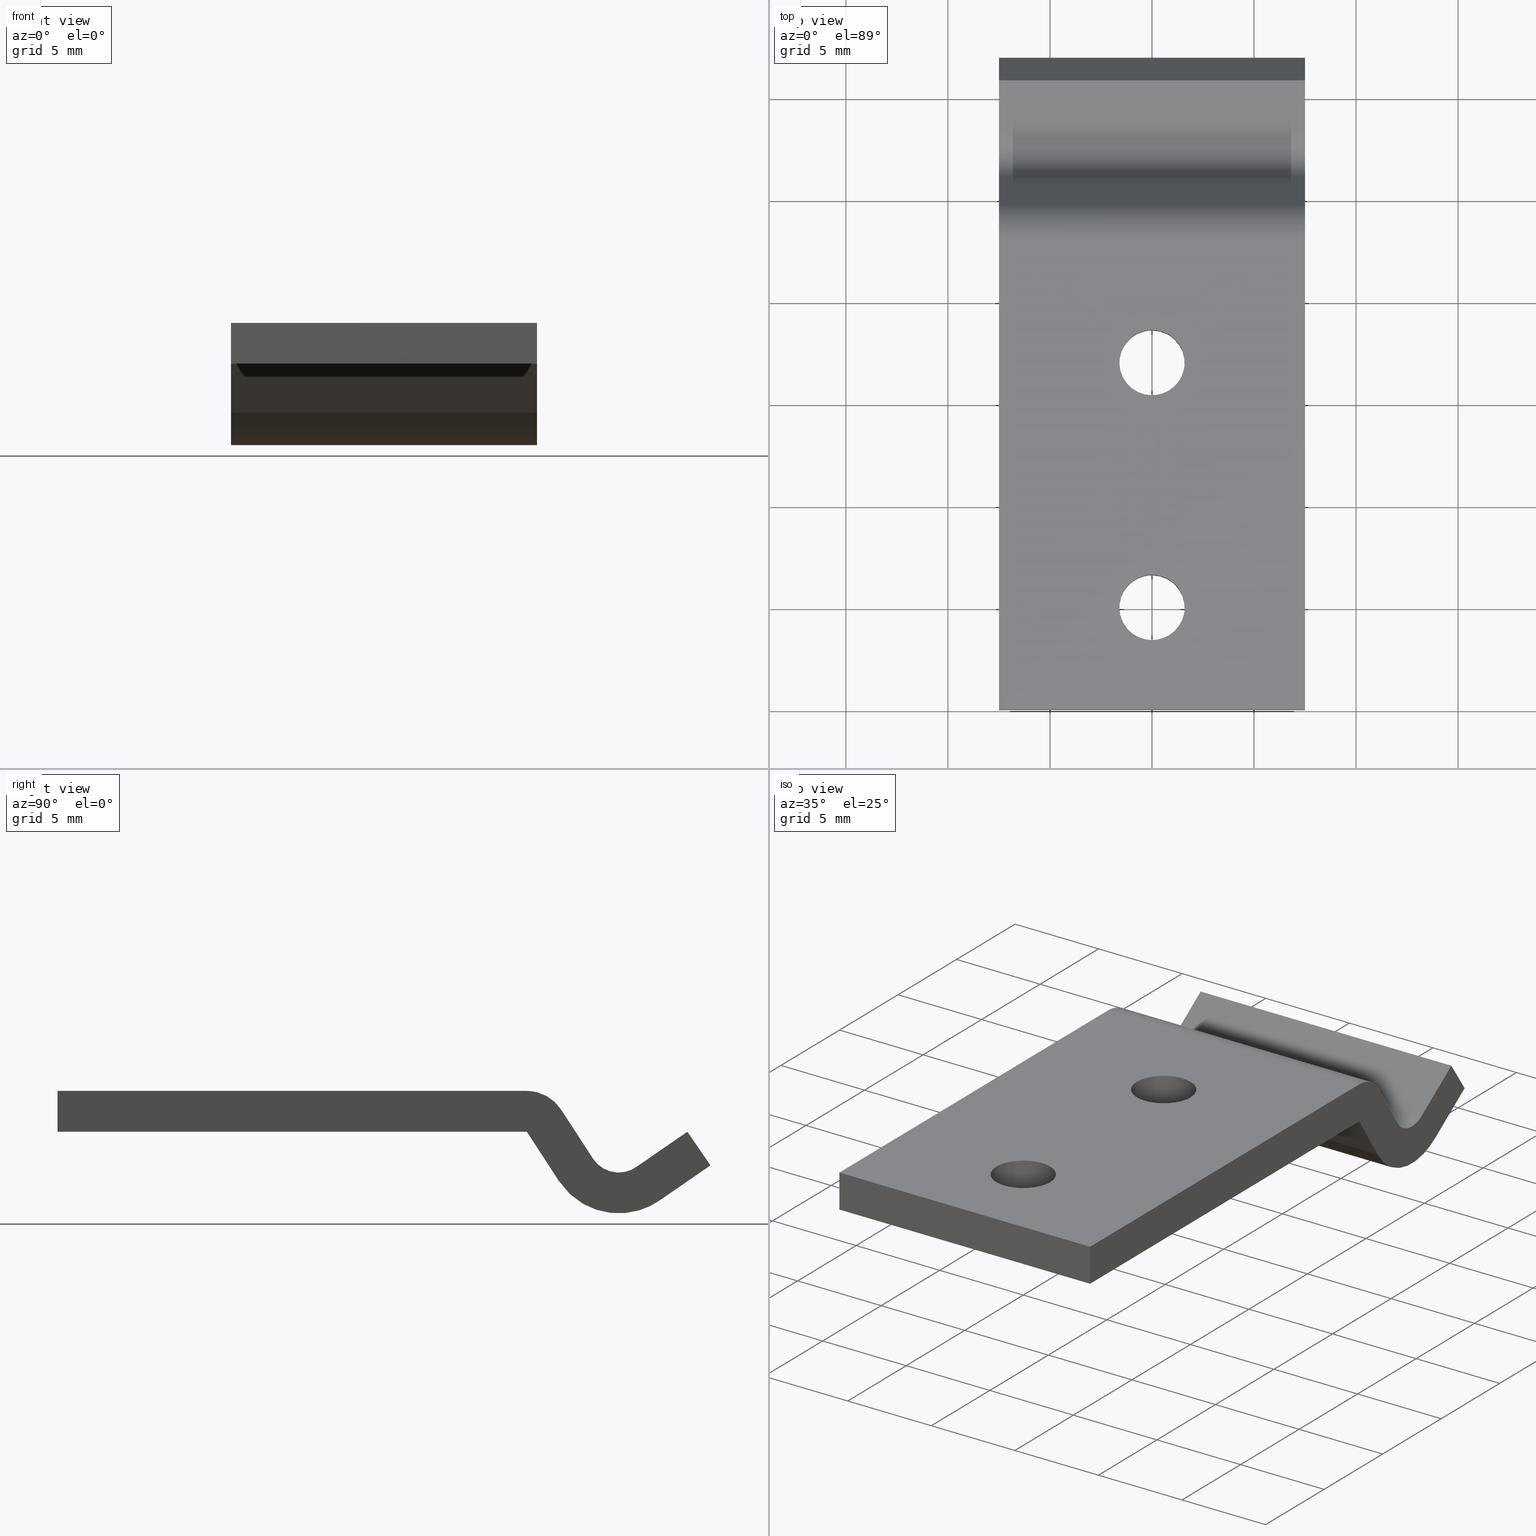
[diagram: canonical four-view strip — front | top / right | iso, engineering-drawing reading convention]
A machine part, canonical four-view strip (front | top / right | iso — engineering-drawing reading convention). The complete STEP part file that produces these views, byte-faithful:
ISO-10303-21;
HEADER;
/****************************************************************
 * Generated by software with PDE/Lib inside                    *
 * PDElib Version 4.4.1-0003, patched  Thursday August 19 11:58 *
 * International Technegroup Inc. (www.iti-oh.com)              *
 ****************************************************************/
FILE_DESCRIPTION((''),'2;1');
FILE_NAME('','2005-07-15T14:42:04',(''),(''),'','CADfix','');
FILE_SCHEMA(('AUTOMOTIVE_DESIGN'));
ENDSEC;
DATA;
#5=APPLICATION_CONTEXT('automotive design');
#6=APPLICATION_PROTOCOL_DEFINITION('Draft International Standard','automotive_design',1998,#5);
#7=PRODUCT_CONTEXT('None',#5,'mechanical');
#8=PRODUCT('keepper','','None',(#7));
#9=PRODUCT_RELATED_PRODUCT_CATEGORY('part','description',(#8));
#10=PRODUCT_DEFINITION_FORMATION('None','None',#8);
#11=PRODUCT_DEFINITION_CONTEXT('part definition',#5,'design');
#12=PRODUCT_DEFINITION('None','None',#10,#11);
#18=(NAMED_UNIT(*)PLANE_ANGLE_UNIT()SI_UNIT($,.RADIAN.));
#19=DIMENSIONAL_EXPONENTS(0.0,0.0,0.0,0.0,0.0,0.0,0.0);
#20=PLANE_ANGLE_MEASURE_WITH_UNIT(PLANE_ANGLE_MEASURE(0.017453292500000),#18);
#24=(CONVERSION_BASED_UNIT('DEGREE',#20)NAMED_UNIT(#19)PLANE_ANGLE_UNIT());
#28=(NAMED_UNIT(*)SI_UNIT($,.STERADIAN.)SOLID_ANGLE_UNIT());
#32=(LENGTH_UNIT()NAMED_UNIT(*)SI_UNIT(.MILLI.,.METRE.));
#34=UNCERTAINTY_MEASURE_WITH_UNIT(LENGTH_MEASURE(0.001000000000000),#32,'DISTANCE_ACCURACY_VALUE','');
#36=(GEOMETRIC_REPRESENTATION_CONTEXT(3)GLOBAL_UNCERTAINTY_ASSIGNED_CONTEXT((#34))GLOBAL_UNIT_ASSIGNED_CONTEXT((#24,#28,#32))REPRESENTATION_CONTEXT('None','None'));
#37=AXIS2_PLACEMENT_3D('',#38,#39,#40);
#38=CARTESIAN_POINT('',(0.0,0.0,0.0));
#39=DIRECTION('',(0.0,0.0,1.0));
#40=DIRECTION('',(1.0,0.0,0.0));
#41=ADVANCED_BREP_SHAPE_REPRESENTATION('',(#37,#878),#36);
#42=PRODUCT_DEFINITION_SHAPE('','',#12);
#43=SHAPE_DEFINITION_REPRESENTATION(#42,#41);
#44=CARTESIAN_POINT('',(-1.263055872870600,17.982186266452086,-2.050000000000000));
#45=CARTESIAN_POINT('',(-2.137684591812384,16.857445493980098,-2.050000000000000));
#46=CARTESIAN_POINT('',(-1.121454822879762,15.858799281353310,-2.050000000000000));
#47=CARTESIAN_POINT('',(0.019745895766928,14.737344458473556,-2.050000000000001));
#48=CARTESIAN_POINT('',(1.141200718646689,15.878545177120239,-2.050000000000000));
#49=CARTESIAN_POINT('',(2.262655541526450,17.019745895766935,-2.050000000000001));
#50=CARTESIAN_POINT('',(1.121454822879760,18.141200718646690,-2.050000000000000));
#51=CARTESIAN_POINT('',(-1.263055872870600,17.982186266452086,0.051250000000000));
#52=CARTESIAN_POINT('',(-2.137684591812384,16.857445493980098,0.051250000000000));
#53=CARTESIAN_POINT('',(-1.121454822879762,15.858799281353310,0.051250000000000));
#54=CARTESIAN_POINT('',(0.019745895766928,14.737344458473556,0.051250000000000));
#55=CARTESIAN_POINT('',(1.141200718646689,15.878545177120239,0.051250000000000));
#56=CARTESIAN_POINT('',(2.262655541526450,17.019745895766935,0.051250000000000));
#57=CARTESIAN_POINT('',(1.121454822879760,18.141200718646690,0.051250000000000));
#65=(BOUNDED_SURFACE()B_SPLINE_SURFACE(2,1,((#44,#51),(#45,#52),(#46,#53),(#47,#54),(#48,#55),(#49,#56),(#50,#57)),.UNSPECIFIED.,.F.,.F.,.U.)B_SPLINE_SURFACE_WITH_KNOTS((3,2,2,3),(2,2),(1.696460032938489,3.141592653589793,4.712388980384690,6.283185307179586),(0.0,2.101250000000000),.UNSPECIFIED.)GEOMETRIC_REPRESENTATION_ITEM()RATIONAL_B_SPLINE_SURFACE(((0.956886118190660,0.956886118190660),(0.730538238691624,0.730538238691624),(1.0,1.0),(0.707106781186548,0.707106781186548),(1.0,1.0),(0.707106781186548,0.707106781186548),(1.0,1.0)))REPRESENTATION_ITEM('')SURFACE());
#66=CARTESIAN_POINT('',(-1.263056931649046,17.982184904898428,7.661973E-014));
#67=VERTEX_POINT('',#66);
#68=CARTESIAN_POINT('',(-1.600000000000001,17.0,0.0));
#69=VERTEX_POINT('',#68);
#70=CARTESIAN_POINT('',(-1.263056931649047,17.982184904898421,7.661973E-014));
#71=CARTESIAN_POINT('',(-1.600000000000001,17.548887390420436,0.0));
#72=CARTESIAN_POINT('',(-1.600000000000001,17.0,0.0));
#80=(BOUNDED_CURVE()B_SPLINE_CURVE(2,(#70,#71,#72),.UNSPECIFIED.,.F.,.U.)B_SPLINE_CURVE_WITH_KNOTS((3,3),(0.893802338418216,1.0),.UNSPECIFIED.)CURVE()GEOMETRIC_REPRESENTATION_ITEM()RATIONAL_B_SPLINE_CURVE((0.856866860460670,0.875581700275399,1.0))REPRESENTATION_ITEM(''));
#81=EDGE_CURVE('',#67,#69,#80,.T.);
#82=ORIENTED_EDGE('',*,*,#81,.T.);
#83=CARTESIAN_POINT('',(1.599999999999999,17.0,0.0));
#84=VERTEX_POINT('',#83);
#85=CARTESIAN_POINT('',(-1.600000000000001,17.0,0.0));
#86=CARTESIAN_POINT('',(-1.600000000000001,15.399999999999997,0.0));
#87=CARTESIAN_POINT('',(-1.223941E-015,15.400000000000000,0.0));
#88=CARTESIAN_POINT('',(1.599999999999998,15.399999999999997,0.0));
#89=CARTESIAN_POINT('',(1.599999999999999,17.0,0.0));
#97=(BOUNDED_CURVE()B_SPLINE_CURVE(2,(#85,#86,#87,#88,#89),.UNSPECIFIED.,.F.,.U.)B_SPLINE_CURVE_WITH_KNOTS((3,2,3),(0.0,0.250000000000000,0.500000000000000),.UNSPECIFIED.)CURVE()GEOMETRIC_REPRESENTATION_ITEM()RATIONAL_B_SPLINE_CURVE((1.0,0.707106781186548,1.0,0.707106781186548,1.0))REPRESENTATION_ITEM(''));
#98=EDGE_CURVE('',#69,#84,#97,.T.);
#99=ORIENTED_EDGE('',*,*,#98,.T.);
#100=CARTESIAN_POINT('',(1.121454714115848,18.141200825528671,1.040834E-016));
#101=VERTEX_POINT('',#100);
#102=CARTESIAN_POINT('',(1.599999999999999,17.0,0.0));
#103=CARTESIAN_POINT('',(1.599999999999999,17.670935862118078,0.0));
#104=CARTESIAN_POINT('',(1.121454714115848,18.141200825528667,1.040834E-016));
#112=(BOUNDED_CURVE()B_SPLINE_CURVE(2,(#102,#103,#104),.UNSPECIFIED.,.F.,.U.)B_SPLINE_CURVE_WITH_KNOTS((3,3),(0.500000000000000,0.626316786352934),.UNSPECIFIED.)CURVE()GEOMETRIC_REPRESENTATION_ITEM()RATIONAL_B_SPLINE_CURVE((1.0,0.852010679419672,0.853569641961433))REPRESENTATION_ITEM(''));
#113=EDGE_CURVE('',#84,#101,#112,.T.);
#114=ORIENTED_EDGE('',*,*,#113,.T.);
#115=CARTESIAN_POINT('',(1.121454701941932,18.141200837491940,-1.999999999999998));
#116=VERTEX_POINT('',#115);
#117=CARTESIAN_POINT('',(1.121454701941932,18.141200837491940,-1.999999999999998));
#118=CARTESIAN_POINT('',(1.121454714115848,18.141200825528671,1.040834E-016));
#119=QUASI_UNIFORM_CURVE('',1,(#117,#118),.UNSPECIFIED.,.F.,.U.);
#120=EDGE_CURVE('',#116,#101,#119,.T.);
#121=ORIENTED_EDGE('',*,*,#120,.F.);
#122=CARTESIAN_POINT('',(-1.223941E-015,15.400000000000000,-2.0));
#123=VERTEX_POINT('',#122);
#124=CARTESIAN_POINT('',(1.121454701941932,18.141200837491940,-1.999999999999997));
#125=CARTESIAN_POINT('',(1.599999999999999,17.670935882187614,-2.000000000000000));
#126=CARTESIAN_POINT('',(1.599999999999999,17.0,-2.0));
#127=CARTESIAN_POINT('',(1.599999999999998,15.399999999999997,-2.000000000000000));
#128=CARTESIAN_POINT('',(-1.223941E-015,15.400000000000000,-2.0));
#136=(BOUNDED_CURVE()B_SPLINE_CURVE(2,(#124,#125,#126,#127,#128),.UNSPECIFIED.,.F.,.U.)B_SPLINE_CURVE_WITH_KNOTS((3,2,3),(0.123683210427761,0.250000000000000,0.500000000000000),.UNSPECIFIED.)CURVE()GEOMETRIC_REPRESENTATION_ITEM()RATIONAL_B_SPLINE_CURVE((0.853569642040897,0.852010675648021,1.0,0.707106781186548,1.0))REPRESENTATION_ITEM(''));
#137=EDGE_CURVE('',#116,#123,#136,.T.);
#138=ORIENTED_EDGE('',*,*,#137,.T.);
#139=CARTESIAN_POINT('',(-1.263056544785496,17.982185402392709,-2.0));
#140=VERTEX_POINT('',#139);
#141=CARTESIAN_POINT('',(-1.223941E-015,15.400000000000000,-2.0));
#142=CARTESIAN_POINT('',(-1.600000000000001,15.399999999999997,-2.000000000000000));
#143=CARTESIAN_POINT('',(-1.600000000000001,17.0,-2.0));
#144=CARTESIAN_POINT('',(-1.600000000000002,17.548887742608766,-2.000000000000000));
#145=CARTESIAN_POINT('',(-1.263056544785496,17.982185402392705,-2.000000000000000));
#153=(BOUNDED_CURVE()B_SPLINE_CURVE(2,(#141,#142,#143,#144,#145),.UNSPECIFIED.,.F.,.U.)B_SPLINE_CURVE_WITH_KNOTS((3,2,3),(0.500000000000000,0.750000000000000,0.856197721244537),.UNSPECIFIED.)CURVE()GEOMETRIC_REPRESENTATION_ITEM()RATIONAL_B_SPLINE_CURVE((1.0,0.707106781186548,1.0,0.875581630376135,0.856866839432390))REPRESENTATION_ITEM(''));
#154=EDGE_CURVE('',#123,#140,#153,.T.);
#155=ORIENTED_EDGE('',*,*,#154,.T.);
#156=CARTESIAN_POINT('',(-1.263056544785496,17.982185402392709,-2.0));
#157=CARTESIAN_POINT('',(-1.263056931649046,17.982184904898428,7.661973E-014));
#158=QUASI_UNIFORM_CURVE('',1,(#156,#157),.UNSPECIFIED.,.F.,.U.);
#159=EDGE_CURVE('',#140,#67,#158,.T.);
#160=ORIENTED_EDGE('',*,*,#159,.T.);
#161=EDGE_LOOP('',(#82,#99,#114,#121,#138,#155,#160));
#162=FACE_OUTER_BOUND('',#161,.T.);
#163=ADVANCED_FACE('',(#162),#65,.F.);
#164=CARTESIAN_POINT('',(1.130142307215026,18.132663551567063,-2.049999999999999));
#165=CARTESIAN_POINT('',(1.125805424281291,18.136925394556503,-2.049999999999999));
#166=CARTESIAN_POINT('',(-0.019745895766931,19.262655541526449,-2.050000000000001));
#167=CARTESIAN_POINT('',(-1.141200718646692,18.121454822879759,-2.050000000000000));
#168=CARTESIAN_POINT('',(-1.206161919057814,18.055349825085063,-2.050000000000000));
#169=CARTESIAN_POINT('',(-1.266981190131970,17.977138450992641,-2.050000000000000));
#170=CARTESIAN_POINT('',(-1.270917439241550,17.972076577573358,-2.049999999999999));
#171=CARTESIAN_POINT('',(1.130142307215026,18.132663551567063,0.051250000000000));
#172=CARTESIAN_POINT('',(1.125805424281291,18.136925394556503,0.051250000000000));
#173=CARTESIAN_POINT('',(-0.019745895766931,19.262655541526449,0.051250000000000));
#174=CARTESIAN_POINT('',(-1.141200718646692,18.121454822879759,0.051250000000000));
#175=CARTESIAN_POINT('',(-1.206161919057814,18.055349825085063,0.051250000000000));
#176=CARTESIAN_POINT('',(-1.266981190131970,17.977138450992641,0.051250000000000));
#177=CARTESIAN_POINT('',(-1.270917439241550,17.972076577573358,0.051250000000000));
#185=(BOUNDED_SURFACE()B_SPLINE_SURFACE(2,1,((#164,#171),(#165,#172),(#166,#173),(#167,#174),(#168,#175),(#169,#176),(#170,#177)),.UNSPECIFIED.,.F.,.F.,.U.)B_SPLINE_SURFACE_WITH_KNOTS((3,1,2,1,3),(2,2),(0.0,0.014315050516549,2.665281849704356,2.877359193639381,2.891676356386252),(0.0,2.101250000000000),.UNSPECIFIED.)GEOMETRIC_REPRESENTATION_ITEM()RATIONAL_B_SPLINE_SURFACE(((1.003163209154150,1.003163209154150),(1.001581604577075,1.001581604577075),(0.707106781186548,0.707106781186548),(1.0,1.0),(0.976568542494924,0.976568542494924),(0.955557374314541,0.955557374314541),(0.954228630438423,0.954228630438423)))REPRESENTATION_ITEM('')SURFACE());
#186=CARTESIAN_POINT('',(1.121454714115848,18.141200825528667,1.040834E-016));
#187=CARTESIAN_POINT('',(0.654577104271281,18.600000000000005,0.0));
#188=CARTESIAN_POINT('',(-1.223941E-015,18.600000000000001,0.0));
#189=CARTESIAN_POINT('',(-0.782628341915235,18.599999999999998,0.0));
#190=CARTESIAN_POINT('',(-1.263056931649046,17.982184904898428,7.661973E-014));
#198=(BOUNDED_CURVE()B_SPLINE_CURVE(2,(#186,#187,#188,#189,#190),.UNSPECIFIED.,.F.,.U.)B_SPLINE_CURVE_WITH_KNOTS((3,2,3),(0.626316786352934,0.750000000000000,0.893802338418216),.UNSPECIFIED.)CURVE()GEOMETRIC_REPRESENTATION_ITEM()RATIONAL_B_SPLINE_CURVE((0.853569641961433,0.855096101766876,1.0,0.831525080911149,0.856866860460671))REPRESENTATION_ITEM(''));
#199=EDGE_CURVE('',#101,#67,#198,.T.);
#200=ORIENTED_EDGE('',*,*,#199,.T.);
#201=ORIENTED_EDGE('',*,*,#159,.F.);
#202=CARTESIAN_POINT('',(-1.223941E-015,18.600000000000001,-2.0));
#203=VERTEX_POINT('',#202);
#204=CARTESIAN_POINT('',(-1.263056544785496,17.982185402392712,-2.000000000000000));
#205=CARTESIAN_POINT('',(-0.782627951418396,18.599999999999994,-2.0));
#206=CARTESIAN_POINT('',(-1.223941E-015,18.600000000000001,-2.0));
#214=(BOUNDED_CURVE()B_SPLINE_CURVE(2,(#204,#205,#206),.UNSPECIFIED.,.F.,.U.)B_SPLINE_CURVE_WITH_KNOTS((3,3),(0.856197721244537,1.0),.UNSPECIFIED.)CURVE()GEOMETRIC_REPRESENTATION_ITEM()RATIONAL_B_SPLINE_CURVE((0.856866839432390,0.831525150810412,1.0))REPRESENTATION_ITEM(''));
#215=EDGE_CURVE('',#140,#203,#214,.T.);
#216=ORIENTED_EDGE('',*,*,#215,.T.);
#217=CARTESIAN_POINT('',(-1.223941E-015,18.600000000000001,-2.0));
#218=CARTESIAN_POINT('',(0.654577084346330,18.599999999999998,-2.000000000000000));
#219=CARTESIAN_POINT('',(1.121454701941932,18.141200837491940,-1.999999999999997));
#227=(BOUNDED_CURVE()B_SPLINE_CURVE(2,(#217,#218,#219),.UNSPECIFIED.,.F.,.U.)B_SPLINE_CURVE_WITH_KNOTS((3,3),(0.0,0.123683210427761),.UNSPECIFIED.)CURVE()GEOMETRIC_REPRESENTATION_ITEM()RATIONAL_B_SPLINE_CURVE((1.0,0.855096105538526,0.853569642040897))REPRESENTATION_ITEM(''));
#228=EDGE_CURVE('',#203,#116,#227,.T.);
#229=ORIENTED_EDGE('',*,*,#228,.T.);
#230=ORIENTED_EDGE('',*,*,#120,.T.);
#231=EDGE_LOOP('',(#200,#201,#216,#229,#230));
#232=FACE_OUTER_BOUND('',#231,.T.);
#233=ADVANCED_FACE('',(#232),#185,.F.);
#234=CARTESIAN_POINT('',(-1.263055872870598,5.982186266452086,-2.050000000000000));
#235=CARTESIAN_POINT('',(-2.137684591812382,4.857445493980086,-2.050000000000000));
#236=CARTESIAN_POINT('',(-1.121454822879760,3.858799281353310,-2.050000000000000));
#237=CARTESIAN_POINT('',(0.019745895766931,2.737344458473548,-2.050000000000001));
#238=CARTESIAN_POINT('',(1.141200718646692,3.878545177120239,-2.050000000000000));
#239=CARTESIAN_POINT('',(2.262655541526453,5.019745895766930,-2.050000000000001));
#240=CARTESIAN_POINT('',(1.121454822879762,6.141200718646690,-2.050000000000000));
#241=CARTESIAN_POINT('',(-1.263055872870598,5.982186266452086,0.051250000000000));
#242=CARTESIAN_POINT('',(-2.137684591812382,4.857445493980086,0.051250000000000));
#243=CARTESIAN_POINT('',(-1.121454822879760,3.858799281353310,0.051250000000000));
#244=CARTESIAN_POINT('',(0.019745895766931,2.737344458473548,0.051250000000000));
#245=CARTESIAN_POINT('',(1.141200718646692,3.878545177120239,0.051250000000000));
#246=CARTESIAN_POINT('',(2.262655541526453,5.019745895766930,0.051250000000000));
#247=CARTESIAN_POINT('',(1.121454822879762,6.141200718646690,0.051250000000000));
#255=(BOUNDED_SURFACE()B_SPLINE_SURFACE(2,1,((#234,#241),(#235,#242),(#236,#243),(#237,#244),(#238,#245),(#239,#246),(#240,#247)),.UNSPECIFIED.,.F.,.F.,.U.)B_SPLINE_SURFACE_WITH_KNOTS((3,2,2,3),(2,2),(1.696460032938489,3.141592653589793,4.712388980384690,6.283185307179586),(0.0,2.101250000000000),.UNSPECIFIED.)GEOMETRIC_REPRESENTATION_ITEM()RATIONAL_B_SPLINE_SURFACE(((0.956886118190660,0.956886118190660),(0.730538238691624,0.730538238691624),(1.0,1.0),(0.707106781186548,0.707106781186548),(1.0,1.0),(0.707106781186548,0.707106781186548),(1.0,1.0)))REPRESENTATION_ITEM('')SURFACE());
#256=CARTESIAN_POINT('',(-1.263056931649043,5.982184904898423,7.661973E-014));
#257=VERTEX_POINT('',#256);
#258=CARTESIAN_POINT('',(-1.599999999999999,5.0,0.0));
#259=VERTEX_POINT('',#258);
#260=CARTESIAN_POINT('',(-1.263056931649043,5.982184904898424,7.661973E-014));
#261=CARTESIAN_POINT('',(-1.599999999999999,5.548887390420437,0.0));
#262=CARTESIAN_POINT('',(-1.599999999999999,5.0,0.0));
#270=(BOUNDED_CURVE()B_SPLINE_CURVE(2,(#260,#261,#262),.UNSPECIFIED.,.F.,.U.)B_SPLINE_CURVE_WITH_KNOTS((3,3),(0.893802338418216,1.0),.UNSPECIFIED.)CURVE()GEOMETRIC_REPRESENTATION_ITEM()RATIONAL_B_SPLINE_CURVE((0.856866860460670,0.875581700275399,1.0))REPRESENTATION_ITEM(''));
#271=EDGE_CURVE('',#257,#259,#270,.T.);
#272=ORIENTED_EDGE('',*,*,#271,.T.);
#273=CARTESIAN_POINT('',(1.600000000000001,5.0,0.0));
#274=VERTEX_POINT('',#273);
#275=CARTESIAN_POINT('',(-1.599999999999999,5.0,0.0));
#276=CARTESIAN_POINT('',(-1.599999999999998,3.400000000000001,0.0));
#277=CARTESIAN_POINT('',(1.287180E-015,3.400000000000000,0.0));
#278=CARTESIAN_POINT('',(1.600000000000001,3.400000000000001,0.0));
#279=CARTESIAN_POINT('',(1.600000000000001,5.0,0.0));
#287=(BOUNDED_CURVE()B_SPLINE_CURVE(2,(#275,#276,#277,#278,#279),.UNSPECIFIED.,.F.,.U.)B_SPLINE_CURVE_WITH_KNOTS((3,2,3),(0.0,0.250000000000000,0.500000000000000),.UNSPECIFIED.)CURVE()GEOMETRIC_REPRESENTATION_ITEM()RATIONAL_B_SPLINE_CURVE((1.0,0.707106781186548,1.0,0.707106781186548,1.0))REPRESENTATION_ITEM(''));
#288=EDGE_CURVE('',#259,#274,#287,.T.);
#289=ORIENTED_EDGE('',*,*,#288,.T.);
#290=CARTESIAN_POINT('',(1.121454714115851,6.141200825528668,1.040834E-016));
#291=VERTEX_POINT('',#290);
#292=CARTESIAN_POINT('',(1.600000000000001,5.0,0.0));
#293=CARTESIAN_POINT('',(1.600000000000001,5.670935862118082,0.0));
#294=CARTESIAN_POINT('',(1.121454714115851,6.141200825528668,1.040834E-016));
#302=(BOUNDED_CURVE()B_SPLINE_CURVE(2,(#292,#293,#294),.UNSPECIFIED.,.F.,.U.)B_SPLINE_CURVE_WITH_KNOTS((3,3),(0.500000000000000,0.626316786352934),.UNSPECIFIED.)CURVE()GEOMETRIC_REPRESENTATION_ITEM()RATIONAL_B_SPLINE_CURVE((1.0,0.852010679419672,0.853569641961433))REPRESENTATION_ITEM(''));
#303=EDGE_CURVE('',#274,#291,#302,.T.);
#304=ORIENTED_EDGE('',*,*,#303,.T.);
#305=CARTESIAN_POINT('',(1.121454701941934,6.141200837491939,-1.999999999999998));
#306=VERTEX_POINT('',#305);
#307=CARTESIAN_POINT('',(1.121454701941934,6.141200837491939,-1.999999999999998));
#308=CARTESIAN_POINT('',(1.121454714115851,6.141200825528668,1.040834E-016));
#309=QUASI_UNIFORM_CURVE('',1,(#307,#308),.UNSPECIFIED.,.F.,.U.);
#310=EDGE_CURVE('',#306,#291,#309,.T.);
#311=ORIENTED_EDGE('',*,*,#310,.F.);
#312=CARTESIAN_POINT('',(1.287180E-015,3.400000000000000,-2.0));
#313=VERTEX_POINT('',#312);
#314=CARTESIAN_POINT('',(1.121454701941934,6.141200837491939,-1.999999999999998));
#315=CARTESIAN_POINT('',(1.600000000000001,5.670935882187609,-2.0));
#316=CARTESIAN_POINT('',(1.600000000000001,5.0,-2.0));
#317=CARTESIAN_POINT('',(1.600000000000001,3.400000000000001,-2.000000000000000));
#318=CARTESIAN_POINT('',(1.287180E-015,3.400000000000000,-2.0));
#326=(BOUNDED_CURVE()B_SPLINE_CURVE(2,(#314,#315,#316,#317,#318),.UNSPECIFIED.,.F.,.U.)B_SPLINE_CURVE_WITH_KNOTS((3,2,3),(0.123683210427761,0.250000000000000,0.500000000000000),.UNSPECIFIED.)CURVE()GEOMETRIC_REPRESENTATION_ITEM()RATIONAL_B_SPLINE_CURVE((0.853569642040896,0.852010675648021,1.0,0.707106781186548,1.0))REPRESENTATION_ITEM(''));
#327=EDGE_CURVE('',#306,#313,#326,.T.);
#328=ORIENTED_EDGE('',*,*,#327,.T.);
#329=CARTESIAN_POINT('',(-1.263056544785492,5.982185402392711,-2.0));
#330=VERTEX_POINT('',#329);
#331=CARTESIAN_POINT('',(1.287180E-015,3.400000000000000,-2.0));
#332=CARTESIAN_POINT('',(-1.599999999999998,3.400000000000001,-2.000000000000000));
#333=CARTESIAN_POINT('',(-1.599999999999999,5.0,-2.0));
#334=CARTESIAN_POINT('',(-1.599999999999999,5.548887742608760,-2.0));
#335=CARTESIAN_POINT('',(-1.263056544785493,5.982185402392711,-2.000000000000000));
#343=(BOUNDED_CURVE()B_SPLINE_CURVE(2,(#331,#332,#333,#334,#335),.UNSPECIFIED.,.F.,.U.)B_SPLINE_CURVE_WITH_KNOTS((3,2,3),(0.500000000000000,0.750000000000000,0.856197721244537),.UNSPECIFIED.)CURVE()GEOMETRIC_REPRESENTATION_ITEM()RATIONAL_B_SPLINE_CURVE((1.0,0.707106781186548,1.0,0.875581630376135,0.856866839432390))REPRESENTATION_ITEM(''));
#344=EDGE_CURVE('',#313,#330,#343,.T.);
#345=ORIENTED_EDGE('',*,*,#344,.T.);
#346=CARTESIAN_POINT('',(-1.263056544785492,5.982185402392711,-2.0));
#347=CARTESIAN_POINT('',(-1.263056931649043,5.982184904898423,7.661973E-014));
#348=QUASI_UNIFORM_CURVE('',1,(#346,#347),.UNSPECIFIED.,.F.,.U.);
#349=EDGE_CURVE('',#330,#257,#348,.T.);
#350=ORIENTED_EDGE('',*,*,#349,.T.);
#351=EDGE_LOOP('',(#272,#289,#304,#311,#328,#345,#350));
#352=FACE_OUTER_BOUND('',#351,.T.);
#353=ADVANCED_FACE('',(#352),#255,.F.);
#354=CARTESIAN_POINT('',(1.130142307215031,6.132663551567060,-2.050000000000000));
#355=CARTESIAN_POINT('',(1.125805424281296,6.136925394556500,-2.050000000000000));
#356=CARTESIAN_POINT('',(-0.019745895766928,7.262655541526451,-2.050000000000001));
#357=CARTESIAN_POINT('',(-1.141200718646689,6.121454822879761,-2.050000000000000));
#358=CARTESIAN_POINT('',(-1.206161919057812,6.055349825085058,-2.050000000000000));
#359=CARTESIAN_POINT('',(-1.266981190131968,5.977138450992638,-2.050000000000000));
#360=CARTESIAN_POINT('',(-1.270917439241548,5.972076577573356,-2.050000000000000));
#361=CARTESIAN_POINT('',(1.130142307215031,6.132663551567060,0.051250000000000));
#362=CARTESIAN_POINT('',(1.125805424281296,6.136925394556500,0.051250000000000));
#363=CARTESIAN_POINT('',(-0.019745895766928,7.262655541526451,0.051250000000000));
#364=CARTESIAN_POINT('',(-1.141200718646689,6.121454822879761,0.051250000000000));
#365=CARTESIAN_POINT('',(-1.206161919057812,6.055349825085058,0.051250000000000));
#366=CARTESIAN_POINT('',(-1.266981190131968,5.977138450992638,0.051250000000000));
#367=CARTESIAN_POINT('',(-1.270917439241548,5.972076577573356,0.051250000000000));
#375=(BOUNDED_SURFACE()B_SPLINE_SURFACE(2,1,((#354,#361),(#355,#362),(#356,#363),(#357,#364),(#358,#365),(#359,#366),(#360,#367)),.UNSPECIFIED.,.F.,.F.,.U.)B_SPLINE_SURFACE_WITH_KNOTS((3,1,2,1,3),(2,2),(0.0,0.014315050516553,2.665281849704360,2.877359193639384,2.891676356386256),(0.0,2.101250000000000),.UNSPECIFIED.)GEOMETRIC_REPRESENTATION_ITEM()RATIONAL_B_SPLINE_SURFACE(((1.003163209154151,1.003163209154151),(1.001581604577075,1.001581604577075),(0.707106781186548,0.707106781186548),(1.0,1.0),(0.976568542494924,0.976568542494924),(0.955557374314541,0.955557374314541),(0.954228630438423,0.954228630438423)))REPRESENTATION_ITEM('')SURFACE());
#376=CARTESIAN_POINT('',(1.121454714115851,6.141200825528668,1.040834E-016));
#377=CARTESIAN_POINT('',(0.654577104271284,6.599999999999999,0.0));
#378=CARTESIAN_POINT('',(1.287180E-015,6.600000000000000,0.0));
#379=CARTESIAN_POINT('',(-0.782628341915233,6.600000000000001,0.0));
#380=CARTESIAN_POINT('',(-1.263056931649043,5.982184904898424,7.661973E-014));
#388=(BOUNDED_CURVE()B_SPLINE_CURVE(2,(#376,#377,#378,#379,#380),.UNSPECIFIED.,.F.,.U.)B_SPLINE_CURVE_WITH_KNOTS((3,2,3),(0.626316786352934,0.750000000000000,0.893802338418216),.UNSPECIFIED.)CURVE()GEOMETRIC_REPRESENTATION_ITEM()RATIONAL_B_SPLINE_CURVE((0.853569641961433,0.855096101766876,1.0,0.831525080911149,0.856866860460670))REPRESENTATION_ITEM(''));
#389=EDGE_CURVE('',#291,#257,#388,.T.);
#390=ORIENTED_EDGE('',*,*,#389,.T.);
#391=ORIENTED_EDGE('',*,*,#349,.F.);
#392=CARTESIAN_POINT('',(1.287180E-015,6.600000000000000,-2.0));
#393=VERTEX_POINT('',#392);
#394=CARTESIAN_POINT('',(-1.263056544785493,5.982185402392711,-2.000000000000000));
#395=CARTESIAN_POINT('',(-0.782627951418390,6.600000000000000,-2.000000000000000));
#396=CARTESIAN_POINT('',(1.287180E-015,6.600000000000000,-2.0));
#404=(BOUNDED_CURVE()B_SPLINE_CURVE(2,(#394,#395,#396),.UNSPECIFIED.,.F.,.U.)B_SPLINE_CURVE_WITH_KNOTS((3,3),(0.856197721244537,1.0),.UNSPECIFIED.)CURVE()GEOMETRIC_REPRESENTATION_ITEM()RATIONAL_B_SPLINE_CURVE((0.856866839432390,0.831525150810413,1.0))REPRESENTATION_ITEM(''));
#405=EDGE_CURVE('',#330,#393,#404,.T.);
#406=ORIENTED_EDGE('',*,*,#405,.T.);
#407=CARTESIAN_POINT('',(1.287180E-015,6.600000000000000,-2.0));
#408=CARTESIAN_POINT('',(0.654577084346331,6.599999999999999,-2.000000000000000));
#409=CARTESIAN_POINT('',(1.121454701941934,6.141200837491939,-1.999999999999997));
#417=(BOUNDED_CURVE()B_SPLINE_CURVE(2,(#407,#408,#409),.UNSPECIFIED.,.F.,.U.)B_SPLINE_CURVE_WITH_KNOTS((3,3),(0.0,0.123683210427761),.UNSPECIFIED.)CURVE()GEOMETRIC_REPRESENTATION_ITEM()RATIONAL_B_SPLINE_CURVE((1.0,0.855096105538527,0.853569642040897))REPRESENTATION_ITEM(''));
#418=EDGE_CURVE('',#393,#306,#417,.T.);
#419=ORIENTED_EDGE('',*,*,#418,.T.);
#420=ORIENTED_EDGE('',*,*,#310,.T.);
#421=EDGE_LOOP('',(#390,#391,#406,#419,#420));
#422=FACE_OUTER_BOUND('',#421,.T.);
#423=ADVANCED_FACE('',(#422),#375,.F.);
#424=CARTESIAN_POINT('',(7.500000000000000,-1.598426787483293,0.299671728121053));
#425=CARTESIAN_POINT('',(7.500000000000000,33.598965173463142,0.299671728121053));
#426=CARTESIAN_POINT('',(7.500000000000000,-1.598426787483293,-6.299106118138382));
#427=CARTESIAN_POINT('',(7.500000000000000,33.598965173463142,-6.299106118138382));
#428=B_SPLINE_SURFACE_WITH_KNOTS('',1,1,((#424,#426),(#425,#427)),.UNSPECIFIED.,.F.,.F.,.U.,(2,2),(2,2),(0.0,35.197391960946433),(0.0,6.598777846259435),.UNSPECIFIED.);
#429=CARTESIAN_POINT('',(7.500000000000000,24.677000032489701,-0.910000049971348));
#430=VERTEX_POINT('',#429);
#431=CARTESIAN_POINT('',(7.500000000000000,23.0,1.408297E-015));
#432=VERTEX_POINT('',#431);
#433=CARTESIAN_POINT('',(7.500000000000000,24.677000032489669,-0.910000049971368));
#434=CARTESIAN_POINT('',(7.500000000000000,24.085376340791562,-0.000042243061587));
#435=CARTESIAN_POINT('',(7.500000000000000,23.0,-1.908196E-014));
#443=(BOUNDED_CURVE()B_SPLINE_CURVE(2,(#433,#434,#435),.UNSPECIFIED.,.F.,.U.)CURVE()GEOMETRIC_REPRESENTATION_ITEM()QUASI_UNIFORM_CURVE()RATIONAL_B_SPLINE_CURVE((1.0,0.878953597617270,1.0))REPRESENTATION_ITEM(''));
#444=EDGE_CURVE('',#430,#432,#443,.T.);
#445=ORIENTED_EDGE('',*,*,#444,.T.);
#446=CARTESIAN_POINT('',(7.500000000000000,0.0,0.0));
#447=VERTEX_POINT('',#446);
#448=CARTESIAN_POINT('',(7.500000000000000,23.0,1.408297E-015));
#449=CARTESIAN_POINT('',(7.500000000000000,0.0,0.0));
#450=QUASI_UNIFORM_CURVE('',1,(#448,#449),.UNSPECIFIED.,.F.,.U.);
#451=EDGE_CURVE('',#432,#447,#450,.T.);
#452=ORIENTED_EDGE('',*,*,#451,.T.);
#453=CARTESIAN_POINT('',(7.500000000000000,0.0,-2.0));
#454=VERTEX_POINT('',#453);
#455=CARTESIAN_POINT('',(7.500000000000000,0.0,0.0));
#456=CARTESIAN_POINT('',(7.500000000000000,0.0,-2.0));
#457=QUASI_UNIFORM_CURVE('',1,(#455,#456),.UNSPECIFIED.,.F.,.U.);
#458=EDGE_CURVE('',#447,#454,#457,.T.);
#459=ORIENTED_EDGE('',*,*,#458,.T.);
#460=CARTESIAN_POINT('',(7.500000000000000,23.0,-2.0));
#461=VERTEX_POINT('',#460);
#462=CARTESIAN_POINT('',(7.500000000000000,0.0,-2.0));
#463=CARTESIAN_POINT('',(7.500000000000000,23.0,-2.0));
#464=QUASI_UNIFORM_CURVE('',1,(#462,#463),.UNSPECIFIED.,.F.,.U.);
#465=EDGE_CURVE('',#454,#461,#464,.T.);
#466=ORIENTED_EDGE('',*,*,#465,.T.);
#467=CARTESIAN_POINT('',(7.500000000000000,24.564715524025651,-4.406024892626915));
#468=VERTEX_POINT('',#467);
#469=CARTESIAN_POINT('',(7.500000000000000,23.0,-2.0));
#470=CARTESIAN_POINT('',(7.500000000000000,24.564715524025651,-4.406024892626915));
#471=QUASI_UNIFORM_CURVE('',1,(#469,#470),.UNSPECIFIED.,.F.,.U.);
#472=EDGE_CURVE('',#461,#468,#471,.T.);
#473=ORIENTED_EDGE('',*,*,#472,.T.);
#474=CARTESIAN_POINT('',(7.500000000000000,29.487200000000001,-5.381399999999999));
#475=VERTEX_POINT('',#474);
#476=CARTESIAN_POINT('',(7.500000000000000,24.564715524025662,-4.406024892626909));
#477=CARTESIAN_POINT('',(7.500000000000000,25.369844758090924,-5.645876763820174));
#478=CARTESIAN_POINT('',(7.500000000000000,26.819983102846631,-5.933217201484426));
#479=CARTESIAN_POINT('',(7.500000000000000,28.270121447602349,-6.220557639148679));
#480=CARTESIAN_POINT('',(7.500000000000000,29.487200000000009,-5.381400000000010));
#488=(BOUNDED_CURVE()B_SPLINE_CURVE(2,(#476,#477,#478,#479,#480),.UNSPECIFIED.,.F.,.U.)B_SPLINE_CURVE_WITH_KNOTS((3,2,3),(0.0,0.500000000000000,1.0),.UNSPECIFIED.)CURVE()GEOMETRIC_REPRESENTATION_ITEM()RATIONAL_B_SPLINE_CURVE((1.0,0.921207497093557,1.0,0.921207497093557,1.0))REPRESENTATION_ITEM(''));
#489=EDGE_CURVE('',#468,#475,#488,.T.);
#490=ORIENTED_EDGE('',*,*,#489,.T.);
#491=CARTESIAN_POINT('',(7.500000000000000,32.000537527658551,-3.648490992657125));
#492=VERTEX_POINT('',#491);
#493=CARTESIAN_POINT('',(7.500000000000000,29.487200000000001,-5.381399999999999));
#494=CARTESIAN_POINT('',(7.500000000000000,32.000537527658551,-3.648490992657125));
#495=QUASI_UNIFORM_CURVE('',1,(#493,#494),.UNSPECIFIED.,.F.,.U.);
#496=EDGE_CURVE('',#475,#492,#495,.T.);
#497=ORIENTED_EDGE('',*,*,#496,.T.);
#498=CARTESIAN_POINT('',(7.500000000000000,30.867300000000000,-2.0));
#499=VERTEX_POINT('',#498);
#500=CARTESIAN_POINT('',(7.500000000000000,32.000537527658551,-3.648490992657125));
#501=CARTESIAN_POINT('',(7.500000000000000,30.867300000000000,-2.0));
#502=QUASI_UNIFORM_CURVE('',1,(#500,#501),.UNSPECIFIED.,.F.,.U.);
#503=EDGE_CURVE('',#492,#499,#502,.T.);
#504=ORIENTED_EDGE('',*,*,#503,.T.);
#505=CARTESIAN_POINT('',(7.500000000000000,28.351751023327949,-3.735033780372080));
#506=VERTEX_POINT('',#505);
#507=CARTESIAN_POINT('',(7.500000000000000,30.867300000000000,-2.0));
#508=CARTESIAN_POINT('',(7.500000000000000,28.351751023327949,-3.735033780372080));
#509=QUASI_UNIFORM_CURVE('',1,(#507,#508),.UNSPECIFIED.,.F.,.U.);
#510=EDGE_CURVE('',#499,#506,#509,.T.);
#511=ORIENTED_EDGE('',*,*,#510,.T.);
#512=CARTESIAN_POINT('',(7.500000000000000,26.242524275549751,-3.317883530610490));
#513=VERTEX_POINT('',#512);
#514=CARTESIAN_POINT('',(7.500000000000000,26.242524275549769,-3.317883530610480));
#515=CARTESIAN_POINT('',(7.500000000000001,26.587754753539777,-3.848871644432641));
#516=CARTESIAN_POINT('',(7.500000000000000,27.209070253143910,-3.971751707523837));
#517=CARTESIAN_POINT('',(7.500000000000001,27.830385752748043,-4.094631770615034));
#518=CARTESIAN_POINT('',(7.500000000000000,28.351751023327960,-3.735033780372091));
#526=(BOUNDED_CURVE()B_SPLINE_CURVE(2,(#514,#515,#516,#517,#518),.UNSPECIFIED.,.F.,.U.)B_SPLINE_CURVE_WITH_KNOTS((3,2,3),(0.0,0.500000000000000,1.0),.UNSPECIFIED.)CURVE()GEOMETRIC_REPRESENTATION_ITEM()RATIONAL_B_SPLINE_CURVE((1.0,0.921245852118904,1.0,0.921245852118904,1.0))REPRESENTATION_ITEM(''));
#527=EDGE_CURVE('',#513,#506,#526,.T.);
#528=ORIENTED_EDGE('',*,*,#527,.F.);
#529=CARTESIAN_POINT('',(7.500000000000000,26.242524275549751,-3.317883530610490));
#530=CARTESIAN_POINT('',(7.500000000000000,24.677000032489701,-0.910000049971348));
#531=QUASI_UNIFORM_CURVE('',1,(#529,#530),.UNSPECIFIED.,.F.,.U.);
#532=EDGE_CURVE('',#513,#430,#531,.T.);
#533=ORIENTED_EDGE('',*,*,#532,.T.);
#534=EDGE_LOOP('',(#445,#452,#459,#466,#473,#490,#497,#504,#511,#528,#533));
#535=FACE_OUTER_BOUND('',#534,.T.);
#536=ADVANCED_FACE('',(#535),#428,.F.);
#537=CARTESIAN_POINT('',(-7.500000000000000,-1.598426787483293,0.299671728121053));
#538=CARTESIAN_POINT('',(-7.500000000000000,33.598965173463142,0.299671728121053));
#539=CARTESIAN_POINT('',(-7.500000000000000,-1.598426787483293,-6.299106118138382));
#540=CARTESIAN_POINT('',(-7.500000000000000,33.598965173463142,-6.299106118138382));
#541=B_SPLINE_SURFACE_WITH_KNOTS('',1,1,((#537,#539),(#538,#540)),.UNSPECIFIED.,.F.,.F.,.U.,(2,2),(2,2),(0.0,35.197391960946433),(0.0,6.598777846259435),.UNSPECIFIED.);
#542=CARTESIAN_POINT('',(-7.500000000000000,24.677000032489701,-0.910000049971348));
#543=VERTEX_POINT('',#542);
#544=CARTESIAN_POINT('',(-7.500000000000000,23.0,1.408297E-015));
#545=VERTEX_POINT('',#544);
#546=CARTESIAN_POINT('',(-7.500000000000000,24.677000032489669,-0.910000049971368));
#547=CARTESIAN_POINT('',(-7.500000000000000,24.085376340791562,-0.000042243061587));
#548=CARTESIAN_POINT('',(-7.500000000000000,23.0,-1.908196E-014));
#556=(BOUNDED_CURVE()B_SPLINE_CURVE(2,(#546,#547,#548),.UNSPECIFIED.,.F.,.U.)CURVE()GEOMETRIC_REPRESENTATION_ITEM()QUASI_UNIFORM_CURVE()RATIONAL_B_SPLINE_CURVE((1.0,0.878953597617270,1.0))REPRESENTATION_ITEM(''));
#557=EDGE_CURVE('',#543,#545,#556,.T.);
#558=ORIENTED_EDGE('',*,*,#557,.F.);
#559=CARTESIAN_POINT('',(-7.500000000000000,26.242524275549751,-3.317883530610490));
#560=VERTEX_POINT('',#559);
#561=CARTESIAN_POINT('',(-7.500000000000000,26.242524275549751,-3.317883530610490));
#562=CARTESIAN_POINT('',(-7.500000000000000,24.677000032489701,-0.910000049971348));
#563=QUASI_UNIFORM_CURVE('',1,(#561,#562),.UNSPECIFIED.,.F.,.U.);
#564=EDGE_CURVE('',#560,#543,#563,.T.);
#565=ORIENTED_EDGE('',*,*,#564,.F.);
#566=CARTESIAN_POINT('',(-7.500000000000000,28.351751023327949,-3.735033780372080));
#567=VERTEX_POINT('',#566);
#568=CARTESIAN_POINT('',(-7.500000000000000,26.242524275549769,-3.317883530610480));
#569=CARTESIAN_POINT('',(-7.500000000000001,26.587754753539777,-3.848871644432641));
#570=CARTESIAN_POINT('',(-7.500000000000000,27.209070253143910,-3.971751707523837));
#571=CARTESIAN_POINT('',(-7.500000000000001,27.830385752748043,-4.094631770615034));
#572=CARTESIAN_POINT('',(-7.500000000000000,28.351751023327960,-3.735033780372091));
#580=(BOUNDED_CURVE()B_SPLINE_CURVE(2,(#568,#569,#570,#571,#572),.UNSPECIFIED.,.F.,.U.)B_SPLINE_CURVE_WITH_KNOTS((3,2,3),(0.0,0.500000000000000,1.0),.UNSPECIFIED.)CURVE()GEOMETRIC_REPRESENTATION_ITEM()RATIONAL_B_SPLINE_CURVE((1.0,0.921245852118904,1.0,0.921245852118904,1.0))REPRESENTATION_ITEM(''));
#581=EDGE_CURVE('',#560,#567,#580,.T.);
#582=ORIENTED_EDGE('',*,*,#581,.T.);
#583=CARTESIAN_POINT('',(-7.500000000000000,30.867300000000000,-2.0));
#584=VERTEX_POINT('',#583);
#585=CARTESIAN_POINT('',(-7.500000000000000,30.867300000000000,-2.0));
#586=CARTESIAN_POINT('',(-7.500000000000000,28.351751023327949,-3.735033780372080));
#587=QUASI_UNIFORM_CURVE('',1,(#585,#586),.UNSPECIFIED.,.F.,.U.);
#588=EDGE_CURVE('',#584,#567,#587,.T.);
#589=ORIENTED_EDGE('',*,*,#588,.F.);
#590=CARTESIAN_POINT('',(-7.500000000000000,32.000537527658551,-3.648490992657125));
#591=VERTEX_POINT('',#590);
#592=CARTESIAN_POINT('',(-7.500000000000000,32.000537527658551,-3.648490992657125));
#593=CARTESIAN_POINT('',(-7.500000000000000,30.867300000000000,-2.0));
#594=QUASI_UNIFORM_CURVE('',1,(#592,#593),.UNSPECIFIED.,.F.,.U.);
#595=EDGE_CURVE('',#591,#584,#594,.T.);
#596=ORIENTED_EDGE('',*,*,#595,.F.);
#597=CARTESIAN_POINT('',(-7.500000000000000,29.487200000000001,-5.381399999999999));
#598=VERTEX_POINT('',#597);
#599=CARTESIAN_POINT('',(-7.500000000000000,29.487200000000001,-5.381399999999999));
#600=CARTESIAN_POINT('',(-7.500000000000000,32.000537527658551,-3.648490992657125));
#601=QUASI_UNIFORM_CURVE('',1,(#599,#600),.UNSPECIFIED.,.F.,.U.);
#602=EDGE_CURVE('',#598,#591,#601,.T.);
#603=ORIENTED_EDGE('',*,*,#602,.F.);
#604=CARTESIAN_POINT('',(-7.500000000000000,24.564715524025651,-4.406024892626915));
#605=VERTEX_POINT('',#604);
#606=CARTESIAN_POINT('',(-7.500000000000000,24.564715524025662,-4.406024892626909));
#607=CARTESIAN_POINT('',(-7.500000000000000,25.369844758090924,-5.645876763820174));
#608=CARTESIAN_POINT('',(-7.500000000000000,26.819983102846631,-5.933217201484426));
#609=CARTESIAN_POINT('',(-7.500000000000000,28.270121447602349,-6.220557639148679));
#610=CARTESIAN_POINT('',(-7.500000000000000,29.487200000000009,-5.381400000000010));
#618=(BOUNDED_CURVE()B_SPLINE_CURVE(2,(#606,#607,#608,#609,#610),.UNSPECIFIED.,.F.,.U.)B_SPLINE_CURVE_WITH_KNOTS((3,2,3),(0.0,0.500000000000000,1.0),.UNSPECIFIED.)CURVE()GEOMETRIC_REPRESENTATION_ITEM()RATIONAL_B_SPLINE_CURVE((1.0,0.921207497093557,1.0,0.921207497093557,1.0))REPRESENTATION_ITEM(''));
#619=EDGE_CURVE('',#605,#598,#618,.T.);
#620=ORIENTED_EDGE('',*,*,#619,.F.);
#621=CARTESIAN_POINT('',(-7.500000000000000,23.0,-2.0));
#622=VERTEX_POINT('',#621);
#623=CARTESIAN_POINT('',(-7.500000000000000,23.0,-2.0));
#624=CARTESIAN_POINT('',(-7.500000000000000,24.564715524025651,-4.406024892626915));
#625=QUASI_UNIFORM_CURVE('',1,(#623,#624),.UNSPECIFIED.,.F.,.U.);
#626=EDGE_CURVE('',#622,#605,#625,.T.);
#627=ORIENTED_EDGE('',*,*,#626,.F.);
#628=CARTESIAN_POINT('',(-7.500000000000000,0.0,-2.0));
#629=VERTEX_POINT('',#628);
#630=CARTESIAN_POINT('',(-7.500000000000000,0.0,-2.0));
#631=CARTESIAN_POINT('',(-7.500000000000000,23.0,-2.0));
#632=QUASI_UNIFORM_CURVE('',1,(#630,#631),.UNSPECIFIED.,.F.,.U.);
#633=EDGE_CURVE('',#629,#622,#632,.T.);
#634=ORIENTED_EDGE('',*,*,#633,.F.);
#635=CARTESIAN_POINT('',(-7.500000000000000,0.0,0.0));
#636=VERTEX_POINT('',#635);
#637=CARTESIAN_POINT('',(-7.500000000000000,0.0,0.0));
#638=CARTESIAN_POINT('',(-7.500000000000000,0.0,-2.0));
#639=QUASI_UNIFORM_CURVE('',1,(#637,#638),.UNSPECIFIED.,.F.,.U.);
#640=EDGE_CURVE('',#636,#629,#639,.T.);
#641=ORIENTED_EDGE('',*,*,#640,.F.);
#642=CARTESIAN_POINT('',(-7.500000000000000,23.0,1.408297E-015));
#643=CARTESIAN_POINT('',(-7.500000000000000,0.0,0.0));
#644=QUASI_UNIFORM_CURVE('',1,(#642,#643),.UNSPECIFIED.,.F.,.U.);
#645=EDGE_CURVE('',#545,#636,#644,.T.);
#646=ORIENTED_EDGE('',*,*,#645,.F.);
#647=EDGE_LOOP('',(#558,#565,#582,#589,#596,#603,#620,#627,#634,#641,#646));
#648=FACE_OUTER_BOUND('',#647,.T.);
#649=ADVANCED_FACE('',(#648),#541,.T.);
#650=CARTESIAN_POINT('',(-8.249249970927089,26.320722458288682,-3.438157690060753));
#651=CARTESIAN_POINT('',(-8.249249970927089,24.598802045707039,-0.789726191915280));
#652=CARTESIAN_POINT('',(8.249250373258443,26.320722458288682,-3.438157690060753));
#653=CARTESIAN_POINT('',(8.249250373258443,24.598802045707039,-0.789726191915280));
#654=B_SPLINE_SURFACE_WITH_KNOTS('',1,1,((#650,#652),(#651,#653)),.UNSPECIFIED.,.F.,.F.,.U.,(2,2),(2,2),(0.0,3.158987069874518),(0.0,16.498500344185530),.UNSPECIFIED.);
#655=ORIENTED_EDGE('',*,*,#532,.F.);
#656=CARTESIAN_POINT('',(-7.500000000000000,26.242524275549751,-3.317883530610490));
#657=CARTESIAN_POINT('',(7.500000000000000,26.242524275549751,-3.317883530610490));
#658=QUASI_UNIFORM_CURVE('',1,(#656,#657),.UNSPECIFIED.,.F.,.U.);
#659=EDGE_CURVE('',#560,#513,#658,.T.);
#660=ORIENTED_EDGE('',*,*,#659,.F.);
#661=ORIENTED_EDGE('',*,*,#564,.T.);
#662=CARTESIAN_POINT('',(-7.500000000000000,24.677000032489701,-0.910000049971348));
#663=CARTESIAN_POINT('',(7.500000000000000,24.677000032489701,-0.910000049971348));
#664=QUASI_UNIFORM_CURVE('',1,(#662,#663),.UNSPECIFIED.,.F.,.U.);
#665=EDGE_CURVE('',#543,#430,#664,.T.);
#666=ORIENTED_EDGE('',*,*,#665,.T.);
#667=EDGE_LOOP('',(#655,#660,#661,#666));
#668=FACE_OUTER_BOUND('',#667,.T.);
#669=ADVANCED_FACE('',(#668),#654,.T.);
#670=CARTESIAN_POINT('',(-7.875000000000001,28.383781944187870,-3.712316876558888));
#671=CARTESIAN_POINT('',(7.884375000000001,28.383781944187870,-3.712316876558888));
#672=CARTESIAN_POINT('',(-7.875000000000001,27.037649919197797,-4.693751503526163));
#673=CARTESIAN_POINT('',(7.884375000000000,27.037649919197797,-4.693751503526163));
#674=CARTESIAN_POINT('',(-7.875000000000001,26.202300805733842,-3.252405877262554));
#675=CARTESIAN_POINT('',(7.884375000000001,26.202300805733842,-3.252405877262554));
#683=(BOUNDED_SURFACE()B_SPLINE_SURFACE(1,2,((#670,#672,#674),(#671,#673,#675)),.UNSPECIFIED.,.F.,.F.,.U.)B_SPLINE_SURFACE_WITH_KNOTS((2,2),(3,3),(0.0,15.759375000000000),(0.0,2.671372111851221),.UNSPECIFIED.)GEOMETRIC_REPRESENTATION_ITEM()RATIONAL_B_SPLINE_SURFACE(((1.0,0.669130606358858,1.0),(1.0,0.669130606358858,1.0)))REPRESENTATION_ITEM('')SURFACE());
#684=ORIENTED_EDGE('',*,*,#527,.T.);
#685=CARTESIAN_POINT('',(-7.500000000000000,28.351751023327949,-3.735033780372080));
#686=CARTESIAN_POINT('',(7.500000000000000,28.351751023327949,-3.735033780372080));
#687=QUASI_UNIFORM_CURVE('',1,(#685,#686),.UNSPECIFIED.,.F.,.U.);
#688=EDGE_CURVE('',#567,#506,#687,.T.);
#689=ORIENTED_EDGE('',*,*,#688,.F.);
#690=ORIENTED_EDGE('',*,*,#581,.F.);
#691=ORIENTED_EDGE('',*,*,#659,.T.);
#692=EDGE_LOOP('',(#684,#689,#690,#691));
#693=FACE_OUTER_BOUND('',#692,.T.);
#694=ADVANCED_FACE('',(#693),#683,.F.);
#695=CARTESIAN_POINT('',(-8.249249970927089,30.992951672148699,-1.913335062143509));
#696=CARTESIAN_POINT('',(-8.249249970927089,28.226099666049901,-3.821698501054820));
#697=CARTESIAN_POINT('',(8.249250373258443,30.992951672148699,-1.913335062143509));
#698=CARTESIAN_POINT('',(8.249250373258443,28.226099666049901,-3.821698501054820));
#699=B_SPLINE_SURFACE_WITH_KNOTS('',1,1,((#695,#697),(#696,#698)),.UNSPECIFIED.,.F.,.F.,.U.,(2,2),(2,2),(0.0,3.361148767702256),(0.0,16.498500344185530),.UNSPECIFIED.);
#700=ORIENTED_EDGE('',*,*,#510,.F.);
#701=CARTESIAN_POINT('',(-7.500000000000000,30.867300000000000,-2.0));
#702=CARTESIAN_POINT('',(7.500000000000000,30.867300000000000,-2.0));
#703=QUASI_UNIFORM_CURVE('',1,(#701,#702),.UNSPECIFIED.,.F.,.U.);
#704=EDGE_CURVE('',#584,#499,#703,.T.);
#705=ORIENTED_EDGE('',*,*,#704,.F.);
#706=ORIENTED_EDGE('',*,*,#588,.T.);
#707=ORIENTED_EDGE('',*,*,#688,.T.);
#708=EDGE_LOOP('',(#700,#705,#706,#707));
#709=FACE_OUTER_BOUND('',#708,.T.);
#710=ADVANCED_FACE('',(#709),#699,.T.);
#711=CARTESIAN_POINT('',(-8.249249970927087,32.057142814434819,-3.730833222869232));
#712=CARTESIAN_POINT('',(-8.249249970927087,30.810694753751459,-1.917657828742526));
#713=CARTESIAN_POINT('',(8.249250373258441,32.057142814434819,-3.730833222869232));
#714=CARTESIAN_POINT('',(8.249250373258441,30.810694753751459,-1.917657828742526));
#715=B_SPLINE_SURFACE_WITH_KNOTS('',1,1,((#711,#713),(#712,#714)),.UNSPECIFIED.,.F.,.F.,.U.,(2,2),(2,2),(0.0,2.200281295163835),(0.0,16.498500344185530),.UNSPECIFIED.);
#716=ORIENTED_EDGE('',*,*,#503,.F.);
#717=CARTESIAN_POINT('',(-7.500000000000000,32.000537527658551,-3.648490992657125));
#718=CARTESIAN_POINT('',(7.500000000000000,32.000537527658551,-3.648490992657125));
#719=QUASI_UNIFORM_CURVE('',1,(#717,#718),.UNSPECIFIED.,.F.,.U.);
#720=EDGE_CURVE('',#591,#492,#719,.T.);
#721=ORIENTED_EDGE('',*,*,#720,.F.);
#722=ORIENTED_EDGE('',*,*,#595,.T.);
#723=ORIENTED_EDGE('',*,*,#704,.T.);
#724=EDGE_LOOP('',(#716,#721,#722,#723));
#725=FACE_OUTER_BOUND('',#724,.T.);
#726=ADVANCED_FACE('',(#725),#715,.T.);
#727=CARTESIAN_POINT('',(-8.249249970927089,29.361658574044650,-5.467958954155023));
#728=CARTESIAN_POINT('',(-8.249249970927089,32.126078998555883,-3.561932007515279));
#729=CARTESIAN_POINT('',(8.249250373258443,29.361658574044650,-5.467958954155023));
#730=CARTESIAN_POINT('',(8.249250373258443,32.126078998555883,-3.561932007515279));
#731=B_SPLINE_SURFACE_WITH_KNOTS('',1,1,((#727,#729),(#728,#730)),.UNSPECIFIED.,.F.,.F.,.U.,(2,2),(2,2),(0.0,3.357820573641723),(0.0,16.498500344185530),.UNSPECIFIED.);
#732=ORIENTED_EDGE('',*,*,#496,.F.);
#733=CARTESIAN_POINT('',(-7.500000000000000,29.487200000000001,-5.381399999999999));
#734=CARTESIAN_POINT('',(7.500000000000000,29.487200000000001,-5.381399999999999));
#735=QUASI_UNIFORM_CURVE('',1,(#733,#734),.UNSPECIFIED.,.F.,.U.);
#736=EDGE_CURVE('',#598,#475,#735,.T.);
#737=ORIENTED_EDGE('',*,*,#736,.F.);
#738=ORIENTED_EDGE('',*,*,#602,.T.);
#739=ORIENTED_EDGE('',*,*,#720,.T.);
#740=EDGE_LOOP('',(#732,#737,#738,#739));
#741=FACE_OUTER_BOUND('',#740,.T.);
#742=ADVANCED_FACE('',(#741),#731,.T.);
#743=CARTESIAN_POINT('',(-7.875000000000001,29.582289493315962,-5.313467612880200));
#744=CARTESIAN_POINT('',(7.884375000000001,29.582289493315962,-5.313467612880200));
#745=CARTESIAN_POINT('',(-7.875000000000001,26.369283835187275,-7.690853944159338));
#746=CARTESIAN_POINT('',(7.884375000000003,26.369283835187275,-7.690853944159338));
#747=CARTESIAN_POINT('',(-7.875000000000000,24.436515574340774,-4.192314537895033));
#748=CARTESIAN_POINT('',(7.884375000000002,24.436515574340774,-4.192314537895033));
#756=(BOUNDED_SURFACE()B_SPLINE_SURFACE(1,2,((#743,#745,#747),(#744,#746,#748)),.UNSPECIFIED.,.F.,.F.,.U.)B_SPLINE_SURFACE_WITH_KNOTS((2,2),(3,3),(0.0,15.759375000000000),(0.0,6.349686639697564),.UNSPECIFIED.)GEOMETRIC_REPRESENTATION_ITEM()RATIONAL_B_SPLINE_SURFACE(((1.0,0.657725612965662,0.996682983089435),(1.0,0.657725612965662,0.996682983089435)))REPRESENTATION_ITEM('')SURFACE());
#757=ORIENTED_EDGE('',*,*,#489,.F.);
#758=CARTESIAN_POINT('',(-7.500000000000000,24.564715524025651,-4.406024892626915));
#759=CARTESIAN_POINT('',(7.500000000000000,24.564715524025651,-4.406024892626915));
#760=QUASI_UNIFORM_CURVE('',1,(#758,#759),.UNSPECIFIED.,.F.,.U.);
#761=EDGE_CURVE('',#605,#468,#760,.T.);
#762=ORIENTED_EDGE('',*,*,#761,.F.);
#763=ORIENTED_EDGE('',*,*,#619,.T.);
#764=ORIENTED_EDGE('',*,*,#736,.T.);
#765=EDGE_LOOP('',(#757,#762,#763,#764));
#766=FACE_OUTER_BOUND('',#765,.T.);
#767=ADVANCED_FACE('',(#766),#756,.T.);
#768=CARTESIAN_POINT('',(-8.249249970927087,22.921842451427121,-1.879819044084604));
#769=CARTESIAN_POINT('',(-8.249249970927087,24.642873338401820,-4.526206257261548));
#770=CARTESIAN_POINT('',(8.249250373258441,22.921842451427121,-1.879819044084604));
#771=CARTESIAN_POINT('',(8.249250373258441,24.642873338401820,-4.526206257261548));
#772=B_SPLINE_SURFACE_WITH_KNOTS('',1,1,((#768,#770),(#769,#771)),.UNSPECIFIED.,.F.,.F.,.U.,(2,2),(2,2),(0.0,3.156788335632812),(0.0,16.498500344185530),.UNSPECIFIED.);
#773=ORIENTED_EDGE('',*,*,#472,.F.);
#774=CARTESIAN_POINT('',(-7.500000000000000,23.0,-2.0));
#775=CARTESIAN_POINT('',(7.500000000000000,23.0,-2.0));
#776=QUASI_UNIFORM_CURVE('',1,(#774,#775),.UNSPECIFIED.,.F.,.U.);
#777=EDGE_CURVE('',#622,#461,#776,.T.);
#778=ORIENTED_EDGE('',*,*,#777,.F.);
#779=ORIENTED_EDGE('',*,*,#626,.T.);
#780=ORIENTED_EDGE('',*,*,#761,.T.);
#781=EDGE_LOOP('',(#773,#778,#779,#780));
#782=FACE_OUTER_BOUND('',#781,.T.);
#783=ADVANCED_FACE('',(#782),#772,.T.);
#784=CARTESIAN_POINT('',(-8.249249970927087,-1.148849955421536,-2.0));
#785=CARTESIAN_POINT('',(-8.249249970927087,24.148850572329611,-2.0));
#786=CARTESIAN_POINT('',(8.249250373258441,-1.148849955421536,-2.0));
#787=CARTESIAN_POINT('',(8.249250373258441,24.148850572329611,-2.0));
#788=B_SPLINE_SURFACE_WITH_KNOTS('',1,1,((#784,#786),(#785,#787)),.UNSPECIFIED.,.F.,.F.,.U.,(2,2),(2,2),(0.0,25.297700527751150),(0.0,16.498500344185530),.UNSPECIFIED.);
#789=ORIENTED_EDGE('',*,*,#465,.F.);
#790=CARTESIAN_POINT('',(-7.500000000000000,0.0,-2.0));
#791=CARTESIAN_POINT('',(7.500000000000000,0.0,-2.0));
#792=QUASI_UNIFORM_CURVE('',1,(#790,#791),.UNSPECIFIED.,.F.,.U.);
#793=EDGE_CURVE('',#629,#454,#792,.T.);
#794=ORIENTED_EDGE('',*,*,#793,.F.);
#795=ORIENTED_EDGE('',*,*,#633,.T.);
#796=ORIENTED_EDGE('',*,*,#777,.T.);
#797=EDGE_LOOP('',(#789,#794,#795,#796));
#798=FACE_OUTER_BOUND('',#797,.T.);
#799=ORIENTED_EDGE('',*,*,#418,.F.);
#800=ORIENTED_EDGE('',*,*,#405,.F.);
#801=ORIENTED_EDGE('',*,*,#344,.F.);
#802=ORIENTED_EDGE('',*,*,#327,.F.);
#803=EDGE_LOOP('',(#799,#800,#801,#802));
#804=FACE_BOUND('',#803,.T.);
#805=ORIENTED_EDGE('',*,*,#228,.F.);
#806=ORIENTED_EDGE('',*,*,#215,.F.);
#807=ORIENTED_EDGE('',*,*,#154,.F.);
#808=ORIENTED_EDGE('',*,*,#137,.F.);
#809=EDGE_LOOP('',(#805,#806,#807,#808));
#810=FACE_BOUND('',#809,.T.);
#811=ADVANCED_FACE('',(#798,#804,#810),#788,.T.);
#812=CARTESIAN_POINT('',(-8.249249970927089,0.0,0.099899996123612));
#813=CARTESIAN_POINT('',(-8.249249970927089,0.0,-2.099900049767792));
#814=CARTESIAN_POINT('',(8.249250373258443,0.0,0.099899996123612));
#815=CARTESIAN_POINT('',(8.249250373258443,0.0,-2.099900049767792));
#816=B_SPLINE_SURFACE_WITH_KNOTS('',1,1,((#812,#814),(#813,#815)),.UNSPECIFIED.,.F.,.F.,.U.,(2,2),(2,2),(0.0,2.199800045891404),(0.0,16.498500344185530),.UNSPECIFIED.);
#817=ORIENTED_EDGE('',*,*,#458,.F.);
#818=CARTESIAN_POINT('',(-7.500000000000000,0.0,0.0));
#819=CARTESIAN_POINT('',(7.500000000000000,0.0,0.0));
#820=QUASI_UNIFORM_CURVE('',1,(#818,#819),.UNSPECIFIED.,.F.,.U.);
#821=EDGE_CURVE('',#636,#447,#820,.T.);
#822=ORIENTED_EDGE('',*,*,#821,.F.);
#823=ORIENTED_EDGE('',*,*,#640,.T.);
#824=ORIENTED_EDGE('',*,*,#793,.T.);
#825=EDGE_LOOP('',(#817,#822,#823,#824));
#826=FACE_OUTER_BOUND('',#825,.T.);
#827=ADVANCED_FACE('',(#826),#816,.T.);
#828=CARTESIAN_POINT('',(-8.249249970927087,24.148849955421539,1.408297E-015));
#829=CARTESIAN_POINT('',(-8.249249970927087,-1.148850572329609,1.408297E-015));
#830=CARTESIAN_POINT('',(8.249250373258441,24.148849955421539,1.408297E-015));
#831=CARTESIAN_POINT('',(8.249250373258441,-1.148850572329609,1.408297E-015));
#832=B_SPLINE_SURFACE_WITH_KNOTS('',1,1,((#828,#830),(#829,#831)),.UNSPECIFIED.,.F.,.F.,.U.,(2,2),(2,2),(0.0,25.297700527751150),(0.0,16.498500344185530),.UNSPECIFIED.);
#833=ORIENTED_EDGE('',*,*,#451,.F.);
#834=CARTESIAN_POINT('',(-7.500000000000000,23.0,1.408297E-015));
#835=CARTESIAN_POINT('',(7.500000000000000,23.0,1.408297E-015));
#836=QUASI_UNIFORM_CURVE('',1,(#834,#835),.UNSPECIFIED.,.F.,.U.);
#837=EDGE_CURVE('',#545,#432,#836,.T.);
#838=ORIENTED_EDGE('',*,*,#837,.F.);
#839=ORIENTED_EDGE('',*,*,#645,.T.);
#840=ORIENTED_EDGE('',*,*,#821,.T.);
#841=EDGE_LOOP('',(#833,#838,#839,#840));
#842=FACE_OUTER_BOUND('',#841,.T.);
#843=ORIENTED_EDGE('',*,*,#288,.F.);
#844=ORIENTED_EDGE('',*,*,#271,.F.);
#845=ORIENTED_EDGE('',*,*,#389,.F.);
#846=ORIENTED_EDGE('',*,*,#303,.F.);
#847=EDGE_LOOP('',(#843,#844,#845,#846));
#848=FACE_BOUND('',#847,.T.);
#849=ORIENTED_EDGE('',*,*,#98,.F.);
#850=ORIENTED_EDGE('',*,*,#81,.F.);
#851=ORIENTED_EDGE('',*,*,#199,.F.);
#852=ORIENTED_EDGE('',*,*,#113,.F.);
#853=EDGE_LOOP('',(#849,#850,#851,#852));
#854=FACE_BOUND('',#853,.T.);
#855=ADVANCED_FACE('',(#842,#848,#854),#832,.T.);
#856=CARTESIAN_POINT('',(-7.875000000000000,22.946491884714941,-0.000713688685106));
#857=CARTESIAN_POINT('',(7.884375000000002,22.946491884714941,-0.000713688685106));
#858=CARTESIAN_POINT('',(-7.875000000000001,24.129832838521470,0.030904706960725));
#859=CARTESIAN_POINT('',(7.884375000000001,24.129832838521470,0.030904706960725));
#860=CARTESIAN_POINT('',(-7.875000000000000,24.727057273695042,-0.991161098127459));
#861=CARTESIAN_POINT('',(7.884375000000003,24.727057273695042,-0.991161098127459));
#869=(BOUNDED_SURFACE()B_SPLINE_SURFACE(1,2,((#856,#858,#860),(#857,#859,#861)),.UNSPECIFIED.,.F.,.F.,.U.)B_SPLINE_SURFACE_WITH_KNOTS((2,2),(3,3),(0.0,15.759375000000000),(0.0,2.190138917084686),.UNSPECIFIED.)GEOMETRIC_REPRESENTATION_ITEM()RATIONAL_B_SPLINE_SURFACE(((1.0,0.856974219958842,0.991586829872685),(1.0,0.856974219958842,0.991586829872685)))REPRESENTATION_ITEM('')SURFACE());
#870=ORIENTED_EDGE('',*,*,#444,.F.);
#871=ORIENTED_EDGE('',*,*,#665,.F.);
#872=ORIENTED_EDGE('',*,*,#557,.T.);
#873=ORIENTED_EDGE('',*,*,#837,.T.);
#874=EDGE_LOOP('',(#870,#871,#872,#873));
#875=FACE_OUTER_BOUND('',#874,.T.);
#876=ADVANCED_FACE('',(#875),#869,.T.);
#877=CLOSED_SHELL('',(#163,#233,#353,#423,#536,#649,#669,#694,#710,#726,#742,#767,#783,#811,#827,#855,#876));
#878=MANIFOLD_SOLID_BREP('keepper',#877);
#884=(NAMED_UNIT(*)PLANE_ANGLE_UNIT()SI_UNIT($,.RADIAN.));
#885=DIMENSIONAL_EXPONENTS(0.0,0.0,0.0,0.0,0.0,0.0,0.0);
#886=PLANE_ANGLE_MEASURE_WITH_UNIT(PLANE_ANGLE_MEASURE(0.017453292500000),#884);
#890=(CONVERSION_BASED_UNIT('DEGREE',#886)NAMED_UNIT(#885)PLANE_ANGLE_UNIT());
#894=(NAMED_UNIT(*)SI_UNIT($,.STERADIAN.)SOLID_ANGLE_UNIT());
#898=(LENGTH_UNIT()NAMED_UNIT(*)SI_UNIT(.MILLI.,.METRE.));
#900=UNCERTAINTY_MEASURE_WITH_UNIT(LENGTH_MEASURE(0.001000000000000),#898,'DISTANCE_ACCURACY_VALUE','');
#902=(GEOMETRIC_REPRESENTATION_CONTEXT(3)GLOBAL_UNCERTAINTY_ASSIGNED_CONTEXT((#900))GLOBAL_UNIT_ASSIGNED_CONTEXT((#890,#894,#898))REPRESENTATION_CONTEXT('','3D'));
ENDSEC;
END-ISO-10303-21;
